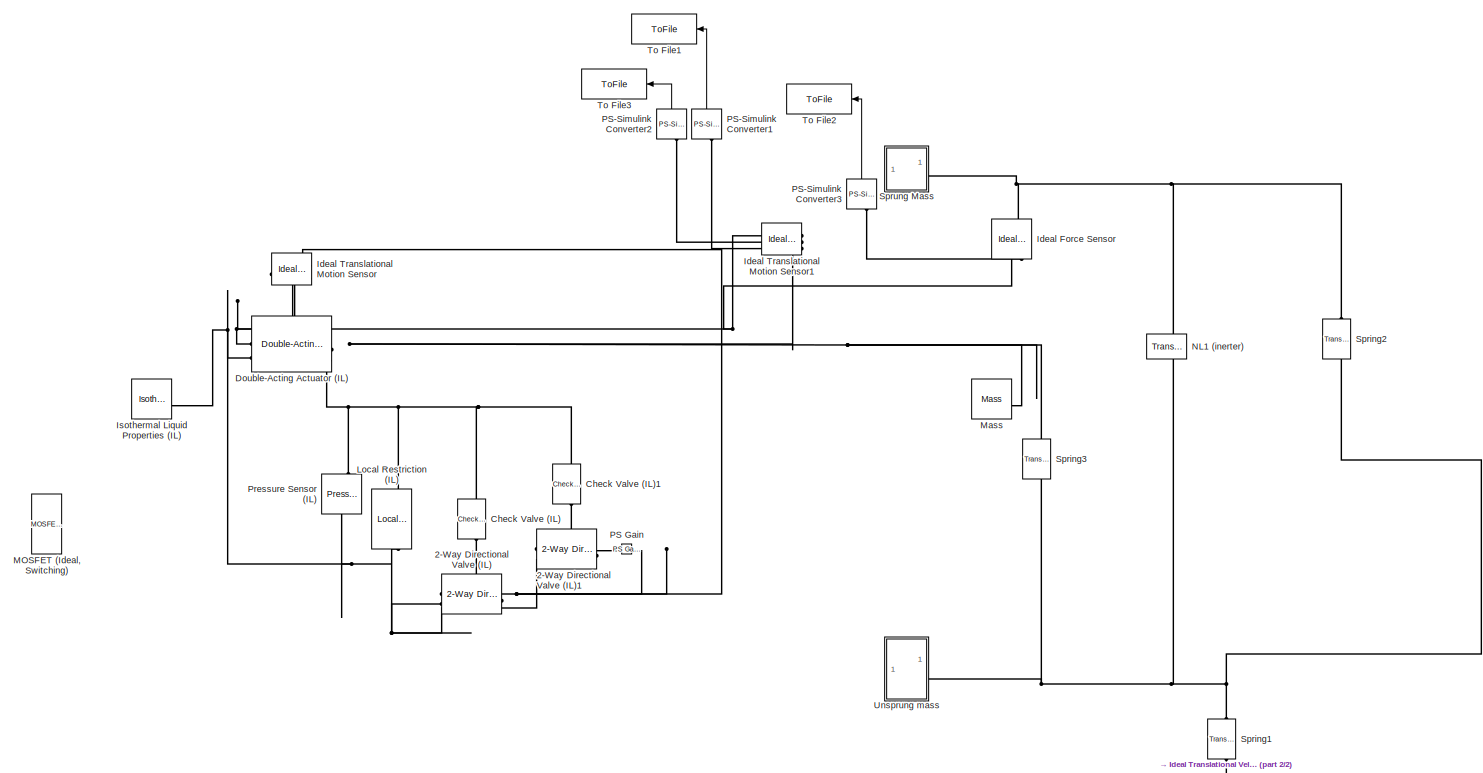
[diagram: root canvas - part 1/2, most of the canvas]
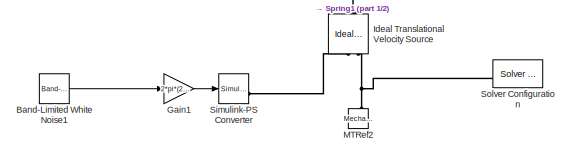
[diagram: root canvas - part 2/2, bottom right region]
MODEL slx_5edc1734a00f
KIND model
CONFIG AbsTol = 1e-6
CONFIG EnableMultiTasking = off
CONFIG FixedStep = 0.0001
CONFIG MaxStep = 1e-2
CONFIG MinStep = 1e-12
CONFIG RelTol = 1e-6
CONFIG SampleTimeConstraint = Unconstrained
CONFIG SolverName = FixedStepAuto
CONFIG StartTime = 0.0
CONFIG StopTime = 100
BLOCK [Reference] 2-Way Directional Valve (IL)  REF=SimscapeFluids_lib/Isothermal Liquid/Valves & Orifices/Directional Control
Valves/2-Way Directional
Valve (IL)
  NameLocation = top
  SourceBlock = SimscapeFluids_lib/Isothermal Liquid/Valves & Orifices/Directional Control\nValves/2-Way Directional\nValve (IL)
  SourceType = 2-Way Directional\nValve (IL)
BLOCK [Reference] 2-Way Directional Valve (IL)1  REF=SimscapeFluids_lib/Isothermal Liquid/Valves & Orifices/Directional Control
Valves/2-Way Directional
Valve (IL)
  NameLocation = top
  SourceBlock = SimscapeFluids_lib/Isothermal Liquid/Valves & Orifices/Directional Control\nValves/2-Way Directional\nValve (IL)
  SourceType = 2-Way Directional\nValve (IL)
BLOCK [Reference] Band-Limited White Noise1  REF=simulink/Sources/Band-Limited
White Noise
  SourceBlock = simulink/Sources/Band-Limited\nWhite Noise
  SourceType = Band-Limited White Noise.
BLOCK [Reference] Check Valve (IL)  REF=SimscapeFluids_lib/Isothermal Liquid/Valves & Orifices/Directional Control
Valves/Check Valve (IL)
  NameLocation = left
  SourceBlock = SimscapeFluids_lib/Isothermal Liquid/Valves & Orifices/Directional Control\nValves/Check Valve (IL)
  SourceType = Check Valve (IL)
BLOCK [Reference] Check Valve (IL)1  REF=SimscapeFluids_lib/Isothermal Liquid/Valves & Orifices/Directional Control
Valves/Check Valve (IL)
  NameLocation = right
  SourceBlock = SimscapeFluids_lib/Isothermal Liquid/Valves & Orifices/Directional Control\nValves/Check Valve (IL)
  SourceType = Check Valve (IL)
BLOCK [Reference] Double-Acting Actuator (IL)  REF=SimscapeFluids_lib/Isothermal Liquid/Actuators/Double-Acting
Actuator (IL)
  SourceBlock = SimscapeFluids_lib/Isothermal Liquid/Actuators/Double-Acting\nActuator (IL)
  SourceType = Double-Acting\nActuator (IL)
BLOCK [Gain] Gain1
  Gain = 2*pi*(25*5e-7)^0.5
BLOCK [Reference] Ideal Force Sensor  REF=fl_lib/Mechanical/Mechanical Sensors/Ideal Force Sensor
  NameLocation = left
  SourceBlock = fl_lib/Mechanical/Mechanical Sensors/Ideal Force Sensor
  SourceType = Ideal Force Sensor
BLOCK [Reference] Ideal Translational Motion Sensor  REF=fl_lib/Mechanical/Mechanical Sensors/Ideal Translational
Motion Sensor
  NameLocation = top
  SourceBlock = fl_lib/Mechanical/Mechanical Sensors/Ideal Translational\nMotion Sensor
  SourceType = Ideal Translational\nMotion Sensor
BLOCK [Reference] Ideal Translational Motion Sensor1  REF=fl_lib/Mechanical/Mechanical Sensors/Ideal Translational
Motion Sensor
  NameLocation = top
  SourceBlock = fl_lib/Mechanical/Mechanical Sensors/Ideal Translational\nMotion Sensor
  SourceType = Ideal Translational\nMotion Sensor
BLOCK [Reference] Ideal Translational Velocity Source  REF=fl_lib/Mechanical/Mechanical Sources/Ideal Translational
Velocity Source
  NameLocation = right
  SourceBlock = fl_lib/Mechanical/Mechanical Sources/Ideal Translational\nVelocity Source
  SourceType = Ideal Translational\nVelocity Source
BLOCK [Reference] Isothermal Liquid Properties (IL)  REF=fl_lib/Isothermal Liquid/Utilities/Isothermal Liquid
Properties (IL)
  SourceBlock = fl_lib/Isothermal Liquid/Utilities/Isothermal Liquid\nProperties (IL)
  SourceType = Isothermal Liquid\nProperties (IL)
BLOCK [Reference] Local Restriction (IL)  REF=fl_lib/Isothermal Liquid/Elements/Local Restriction
(IL)
  NameLocation = right
  SourceBlock = fl_lib/Isothermal Liquid/Elements/Local Restriction\n(IL)
  SourceType = Local Restriction\n(IL)
BLOCK [Reference] MOSFET (Ideal, Switching)  REF=ee_lib/Semiconductors &
Converters/MOSFET
(Ideal,
Switching)
  SourceBlock = ee_lib/Semiconductors &\nConverters/MOSFET\n(Ideal,\nSwitching)
  SourceType = MOSFET\n(Ideal,\nSwitching)
BLOCK [Reference] MTRef2  REF=fl_lib/Mechanical/Translational
Elements/Mechanical
Translational
Reference
  NameLocation = right
  SourceBlock = fl_lib/Mechanical/Translational\nElements/Mechanical\nTranslational\nReference
  SourceType = Mechanical\nTranslational\nReference
BLOCK [Reference] Mass  REF=fl_lib/Mechanical/Translational
Elements/Mass
  SourceBlock = fl_lib/Mechanical/Translational\nElements/Mass
  SourceType = Mass
BLOCK [Reference] NL1 (inerter)  REF=fl_lib/Mechanical/Translational
Elements/Translational
Inerter
  NameLocation = left
  SourceBlock = fl_lib/Mechanical/Translational\nElements/Translational\nInerter
  SourceType = Translational\nInerter
BLOCK [Reference] PS Gain  REF=fl_lib/Physical Signals/Functions/PS Gain
  NameLocation = top
  SourceBlock = fl_lib/Physical Signals/Functions/PS Gain
  SourceType = PS Gain
BLOCK [Reference] PS-Simulink Converter1  REF=nesl_utility/PS-Simulink
Converter
  NameLocation = right
  SourceBlock = nesl_utility/PS-Simulink\nConverter
  SourceType = PS-Simulink\nConverter
BLOCK [Reference] PS-Simulink Converter2  REF=nesl_utility/PS-Simulink
Converter
  NameLocation = right
  SourceBlock = nesl_utility/PS-Simulink\nConverter
  SourceType = PS-Simulink\nConverter
BLOCK [Reference] PS-Simulink Converter3  REF=nesl_utility/PS-Simulink
Converter
  NameLocation = right
  SourceBlock = nesl_utility/PS-Simulink\nConverter
  SourceType = PS-Simulink\nConverter
BLOCK [Reference] Pressure Sensor (IL)  REF=fl_lib/Isothermal Liquid/Sensors/Pressure Sensor (IL)
  NameLocation = left
  SourceBlock = fl_lib/Isothermal Liquid/Sensors/Pressure Sensor (IL)
  SourceType = Pressure Sensor (IL)
BLOCK [Reference] Simulink-PS Converter  REF=nesl_utility/Simulink-PS
Converter
  SourceBlock = nesl_utility/Simulink-PS\nConverter
  SourceType = Simulink-PS\nConverter
BLOCK [Reference] Solver Configuration  REF=nesl_utility/Solver
Configuration
  SourceBlock = nesl_utility/Solver\nConfiguration
  SourceType = Solver\nConfiguration
BLOCK [Reference] Spring1  REF=fl_lib/Mechanical/Translational
Elements/Translational Spring
  AttributesFormatString = x0 = %<x> %<x_unit>
  NameLocation = right
  SourceBlock = fl_lib/Mechanical/Translational\nElements/Translational Spring
  SourceType = Translational Spring
BLOCK [Reference] Spring2  REF=fl_lib/Mechanical/Translational
Elements/Translational Spring
  AttributesFormatString = x0 = %<x> %<x_unit>
  NameLocation = right
  SourceBlock = fl_lib/Mechanical/Translational\nElements/Translational Spring
  SourceType = Translational Spring
BLOCK [Reference] Spring3  REF=fl_lib/Mechanical/Translational
Elements/Translational Spring
  AttributesFormatString = x0 = %<x> %<x_unit>
  NameLocation = right
  SourceBlock = fl_lib/Mechanical/Translational\nElements/Translational Spring
  SourceType = Translational Spring
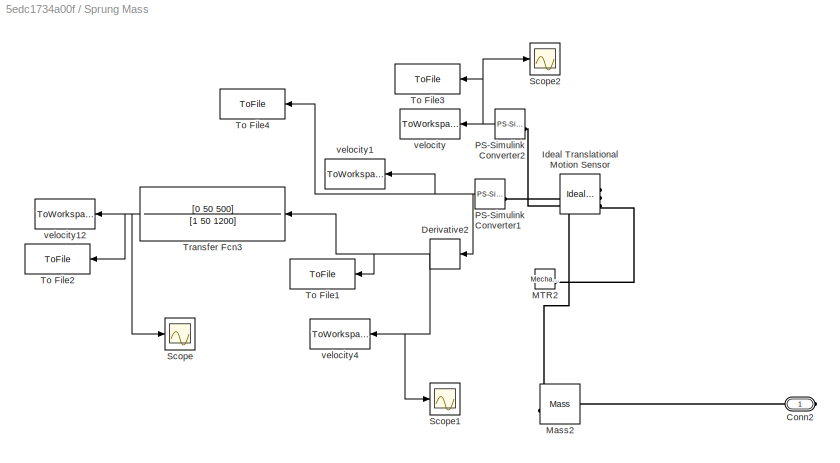
BLOCK [SubSystem] Sprung Mass
BLOCK [PMIOPort] Sprung Mass/Conn2
  Side = Right
BLOCK [Derivative] Sprung Mass/Derivative2
  NameLocation = top
BLOCK [Reference] Sprung Mass/Ideal Translational Motion Sensor  REF=fl_lib/Mechanical/Mechanical Sensors/Ideal Translational
Motion Sensor
  NameLocation = top
  SourceBlock = fl_lib/Mechanical/Mechanical Sensors/Ideal Translational\nMotion Sensor
  SourceType = Ideal Translational\nMotion Sensor
BLOCK [Reference] Sprung Mass/MTR2  REF=fl_lib/Mechanical/Translational
Elements/Mechanical
Translational
Reference
  SourceBlock = fl_lib/Mechanical/Translational\nElements/Mechanical\nTranslational\nReference
  SourceType = Mechanical\nTranslational\nReference
BLOCK [Reference] Sprung Mass/Mass2  REF=fl_lib/Mechanical/Translational
Elements/Mass
  NameLocation = top
  SourceBlock = fl_lib/Mechanical/Translational\nElements/Mass
  SourceType = Mass
BLOCK [Reference] Sprung Mass/PS-Simulink Converter1  REF=nesl_utility/PS-Simulink
Converter
  NameLocation = top
  SourceBlock = nesl_utility/PS-Simulink\nConverter
  SourceType = PS-Simulink\nConverter
BLOCK [Reference] Sprung Mass/PS-Simulink Converter2  REF=nesl_utility/PS-Simulink
Converter
  NameLocation = top
  SourceBlock = nesl_utility/PS-Simulink\nConverter
  SourceType = PS-Simulink\nConverter
BLOCK [Scope] Sprung Mass/Scope
  Floating = off
  NumInputPorts = 1
  ScopeSpecificationString = Simulink.scopes.TimeScopeBlockCfg('CurrentConfiguration', extmgr.ConfigurationSet(extmgr.Configuration('Core','General UI',true),extmgr.Configuration('Core','Source UI',true),extmgr.Configuration('Sources','WiredSimulink',true),extmgr.Configuration('Visuals','Time Domain',true,'SerializedDisplays',{struct('MinYLimReal','-0.96839','MaxYLimReal','4.41833','YLabelReal','','MinYLimMag','0.00000','MaxY...<+1422ch>
BLOCK [Scope] Sprung Mass/Scope1
  Floating = off
  NumInputPorts = 1
  ScopeSpecificationString = Simulink.scopes.TimeScopeBlockCfg('CurrentConfiguration', extmgr.ConfigurationSet(extmgr.Configuration('Core','General UI',true),extmgr.Configuration('Core','Source UI',true),extmgr.Configuration('Sources','WiredSimulink',true,'DataLoggingVariableName','ScopeData1'),extmgr.Configuration('Visuals','Time Domain',true,'SerializedDisplays',{struct('MinYLimReal','-65.6811','MaxYLimReal','585.81994','YL...<+1467ch>
BLOCK [Scope] Sprung Mass/Scope2
  Floating = off
  NumInputPorts = 1
  ScopeSpecificationString = Simulink.scopes.TimeScopeBlockCfg('CurrentConfiguration', extmgr.ConfigurationSet(extmgr.Configuration('Core','General UI',true),extmgr.Configuration('Core','Source UI',true),extmgr.Configuration('Sources','WiredSimulink',true,'DataLoggingVariableName','ScopeData2'),extmgr.Configuration('Visuals','Time Domain',true,'SerializedDisplays',{struct('MinYLimReal','-10','MaxYLimReal','10','YLabelReal',''...<+849ch>
BLOCK [ToFile] Sprung Mass/To File1
  Filename = VDDNL1_a.mat
  MatrixName = Ms_acc
  NameLocation = top
  SaveFormat = Timeseries
BLOCK [ToFile] Sprung Mass/To File2
  Filename = VDDNL1_H.mat
  MatrixName = H2631
  NameLocation = top
  SaveFormat = Timeseries
BLOCK [ToFile] Sprung Mass/To File3
  Filename = VDDNL1_Ms_d.mat
  MatrixName = Ms_d
  NameLocation = top
  SaveFormat = Timeseries
BLOCK [ToFile] Sprung Mass/To File4
  Filename = VDDNL1_Ms_v.mat
  MatrixName = Ms_v
  NameLocation = top
  SaveFormat = Timeseries
BLOCK [TransferFcn] Sprung Mass/Transfer Fcn3
  Denominator = [1 50 1200]
  Numerator = [0 50 500]
BLOCK [ToWorkspace] Sprung Mass/velocity
  FixptAsFi = on
  MaxDataPoints = inf
  NameLocation = top
  SampleTime = -1
  VariableName = Z2X
BLOCK [ToWorkspace] Sprung Mass/velocity1
  FixptAsFi = on
  MaxDataPoints = inf
  NameLocation = top
  SampleTime = -1
  VariableName = Z2V
BLOCK [ToWorkspace] Sprung Mass/velocity12
  FixptAsFi = on
  MaxDataPoints = inf
  NameLocation = top
  SampleTime = -1
  VariableName = Z2A2631
BLOCK [ToWorkspace] Sprung Mass/velocity4
  FixptAsFi = on
  MaxDataPoints = inf
  NameLocation = top
  SampleTime = -1
  VariableName = Z2A
BLOCK [ToFile] To File1
  Filename = VDDNL1_rel_d.mat
  MatrixName = rel_d
  NameLocation = top
  SaveFormat = Timeseries
BLOCK [ToFile] To File2
  Filename = VDDNL1_f.mat
  MatrixName = force
  NameLocation = top
  SaveFormat = Timeseries
BLOCK [ToFile] To File3
  Filename = VDDNL1_rel_v.mat
  MatrixName = rel_v
  NameLocation = top
  SaveFormat = Timeseries
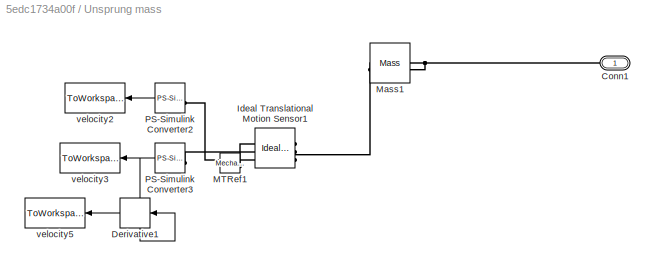
BLOCK [SubSystem] Unsprung mass
BLOCK [PMIOPort] Unsprung mass/Conn1
  Side = Right
BLOCK [Derivative] Unsprung mass/Derivative1
  NameLocation = top
BLOCK [Reference] Unsprung mass/Ideal Translational Motion Sensor1  REF=fl_lib/Mechanical/Mechanical Sensors/Ideal Translational
Motion Sensor
  NameLocation = top
  SourceBlock = fl_lib/Mechanical/Mechanical Sensors/Ideal Translational\nMotion Sensor
  SourceType = Ideal Translational\nMotion Sensor
BLOCK [Reference] Unsprung mass/MTRef1  REF=fl_lib/Mechanical/Translational
Elements/Mechanical
Translational
Reference
  SourceBlock = fl_lib/Mechanical/Translational\nElements/Mechanical\nTranslational\nReference
  SourceType = Mechanical\nTranslational\nReference
BLOCK [Reference] Unsprung mass/Mass1  REF=fl_lib/Mechanical/Translational
Elements/Mass
  NameLocation = top
  SourceBlock = fl_lib/Mechanical/Translational\nElements/Mass
  SourceType = Mass
BLOCK [Reference] Unsprung mass/PS-Simulink Converter2  REF=nesl_utility/PS-Simulink
Converter
  NameLocation = top
  SourceBlock = nesl_utility/PS-Simulink\nConverter
  SourceType = PS-Simulink\nConverter
BLOCK [Reference] Unsprung mass/PS-Simulink Converter3  REF=nesl_utility/PS-Simulink
Converter
  NameLocation = top
  SourceBlock = nesl_utility/PS-Simulink\nConverter
  SourceType = PS-Simulink\nConverter
BLOCK [ToWorkspace] Unsprung mass/velocity2
  FixptAsFi = on
  MaxDataPoints = inf
  NameLocation = top
  SampleTime = -1
  VariableName = Z1X
BLOCK [ToWorkspace] Unsprung mass/velocity3
  FixptAsFi = on
  MaxDataPoints = inf
  NameLocation = top
  SampleTime = -1
  VariableName = Z1V
BLOCK [ToWorkspace] Unsprung mass/velocity5
  FixptAsFi = on
  MaxDataPoints = inf
  NameLocation = top
  SampleTime = -1
  VariableName = Z1A
LINE Band-Limited White Noise1:1 -> Gain1:1
LINE Gain1:1 -> Simulink-PS Converter:1
LINE PS-Simulink Converter1:1 -> To File1:1
LINE PS-Simulink Converter2:1 -> To File3:1
LINE PS-Simulink Converter3:1 -> To File2:1
NET Sprung Mass/Derivative2:1 -> Sprung Mass/Scope1:1, Sprung Mass/To File1:1, Sprung Mass/Transfer Fcn3:1, Sprung Mass/velocity4:1
NET Sprung Mass/PS-Simulink Converter1:1 -> Sprung Mass/Derivative2:1, Sprung Mass/To File4:1, Sprung Mass/velocity1:1
NET Sprung Mass/PS-Simulink Converter2:1 -> Sprung Mass/Scope2:1, Sprung Mass/To File3:1, Sprung Mass/velocity:1
NET Sprung Mass/Transfer Fcn3:1 -> Sprung Mass/Scope:1, Sprung Mass/To File2:1, Sprung Mass/velocity12:1
LINE Unsprung mass/Derivative1:1 -> Unsprung mass/velocity5:1
LINE Unsprung mass/PS-Simulink Converter2:1 -> Unsprung mass/velocity2:1
NET Unsprung mass/PS-Simulink Converter3:1 -> Unsprung mass/Derivative1:1, Unsprung mass/velocity3:1
PLINE 2-Way Directional Valve (IL)1:LConn1 -- PS Gain:RConn1
PNET net1: 2-Way Directional Valve (IL)1:LConn2 -- 2-Way Directional Valve (IL):LConn2 -- Double-Acting Actuator (IL):LConn2 -- Isothermal Liquid Properties (IL):RConn1 -- Local Restriction (IL):LConn1 -- Pressure Sensor (IL):RConn1
PLINE 2-Way Directional Valve (IL)1:RConn1 -- Check Valve (IL)1:LConn1
PNET net2: 2-Way Directional Valve (IL):LConn1 -- Ideal Translational Motion Sensor:RConn3 -- PS Gain:LConn1
PLINE 2-Way Directional Valve (IL):RConn1 -- Check Valve (IL):RConn1
PNET net3: Check Valve (IL)1:RConn1 -- Check Valve (IL):LConn1 -- Double-Acting Actuator (IL):RConn3 -- Local Restriction (IL):RConn1 -- Pressure Sensor (IL):LConn1
PNET net4: Double-Acting Actuator (IL):LConn1 -- Ideal Force Sensor:RConn1 -- Ideal Translational Motion Sensor1:RConn1 -- Ideal Translational Motion Sensor:RConn1
PNET net5: Double-Acting Actuator (IL):RConn2 -- Ideal Translational Motion Sensor1:LConn1 -- Ideal Translational Motion Sensor:LConn1 -- Mass:LConn1 -- Spring3:LConn1
PNET net6: Ideal Force Sensor:LConn1 -- NL1 (inerter):LConn1 -- Spring2:LConn1 -- Sprung Mass:RConn1
PLINE Ideal Force Sensor:RConn2 -- PS-Simulink Converter3:LConn1
PLINE Ideal Translational Motion Sensor1:RConn2 -- PS-Simulink Converter2:LConn1
PLINE Ideal Translational Motion Sensor1:RConn3 -- PS-Simulink Converter1:LConn1
PLINE Ideal Translational Velocity Source:LConn1 -- Spring1:RConn1
PLINE Ideal Translational Velocity Source:RConn1 -- Simulink-PS Converter:RConn1
PNET net7: Ideal Translational Velocity Source:RConn2 -- MTRef2:LConn1 -- Solver Configuration:RConn1
PNET net8: NL1 (inerter):RConn1 -- Spring1:LConn1 -- Spring2:RConn1 -- Spring3:RConn1 -- Unsprung mass:RConn1
PNET net9: Sprung Mass/Conn2:RConn1 -- Sprung Mass/Ideal Translational Motion Sensor:LConn1 -- Sprung Mass/Mass2:LConn1
PLINE Sprung Mass/Ideal Translational Motion Sensor:RConn1 -- Sprung Mass/MTR2:LConn1
PLINE Sprung Mass/Ideal Translational Motion Sensor:RConn2 -- Sprung Mass/PS-Simulink Converter1:LConn1
PLINE Sprung Mass/Ideal Translational Motion Sensor:RConn3 -- Sprung Mass/PS-Simulink Converter2:LConn1
PNET net10: Unsprung mass/Conn1:RConn1 -- Unsprung mass/Ideal Translational Motion Sensor1:LConn1 -- Unsprung mass/Mass1:LConn1
PLINE Unsprung mass/Ideal Translational Motion Sensor1:RConn1 -- Unsprung mass/MTRef1:LConn1
PLINE Unsprung mass/Ideal Translational Motion Sensor1:RConn2 -- Unsprung mass/PS-Simulink Converter3:LConn1
PLINE Unsprung mass/Ideal Translational Motion Sensor1:RConn3 -- Unsprung mass/PS-Simulink Converter2:LConn1
note: NET lines group one-source signal fan-out (src -> all destinations, sorted); 1:1 wires keep LINE; PNET lines group multi-terminal physical nets as a canonical sorted terminal list (undirected conserving connections); 2-terminal nets keep the pairwise PLINE form
